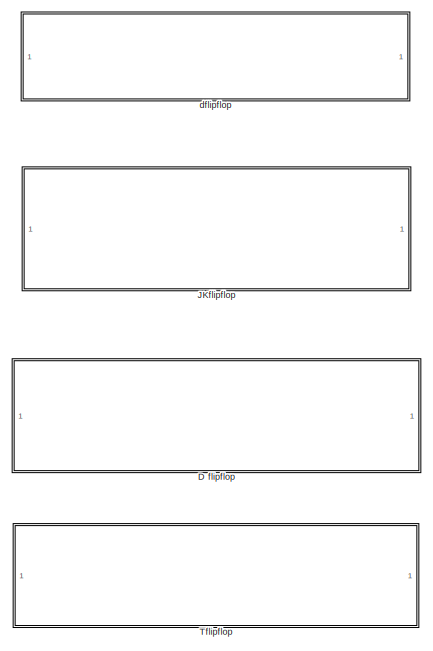
[diagram: root canvas - part 1/2, top center region]
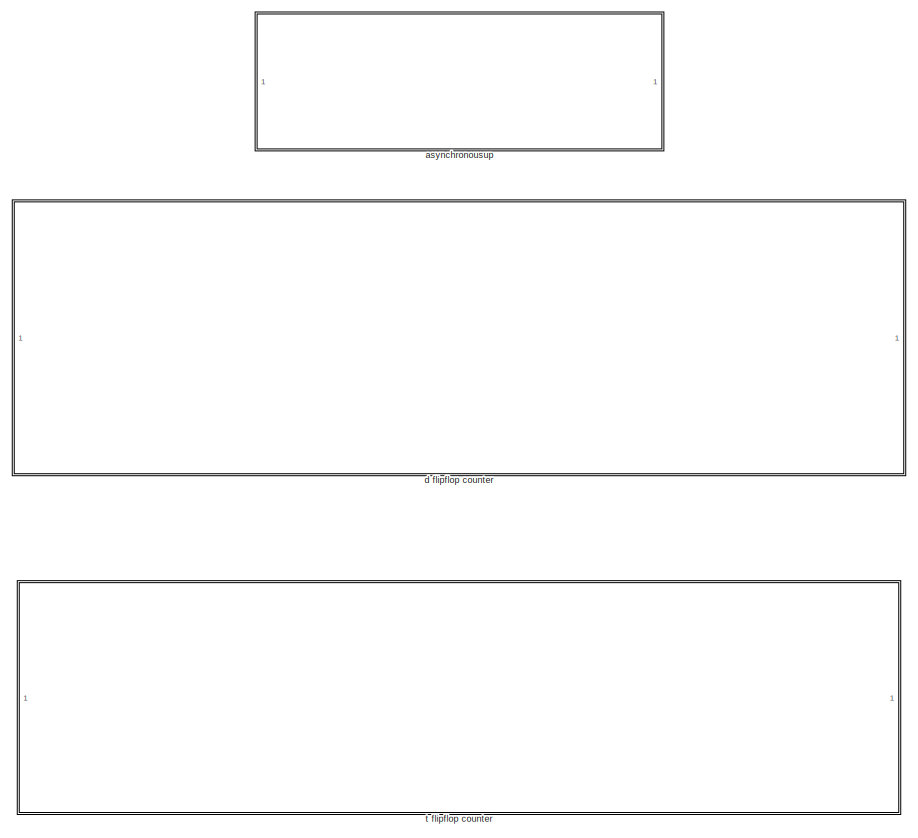
[diagram: root canvas - part 2/2, full width, bottom band]
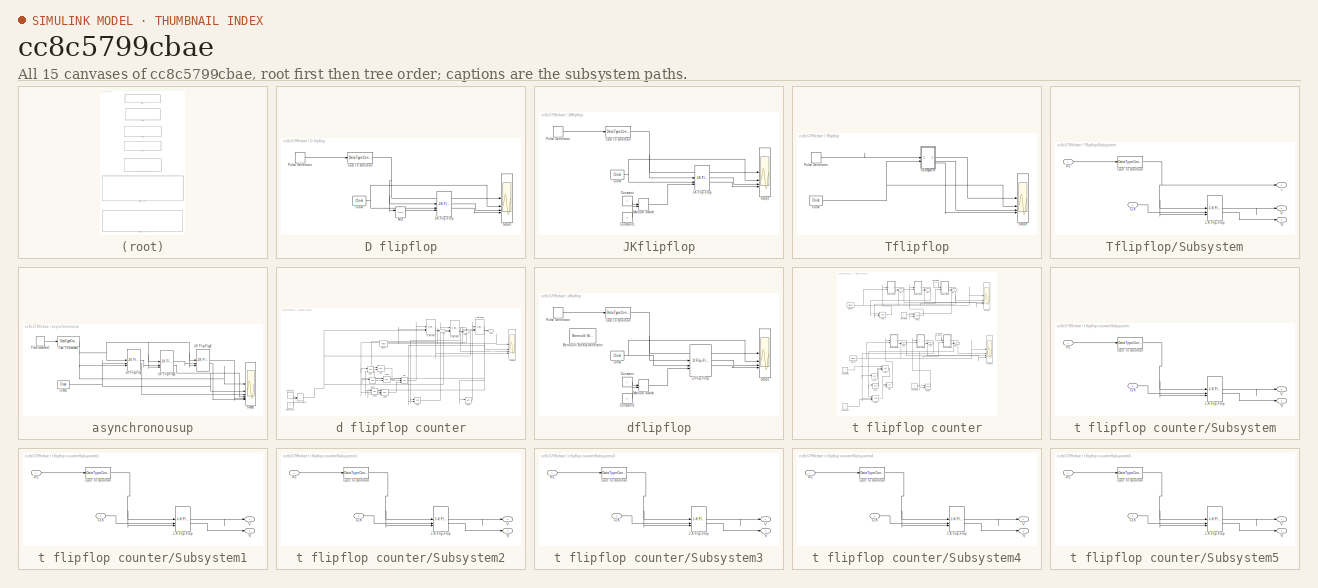
[diagram: thumbnail index - all 15 canvases of the model, root first then tree order]
MODEL slx_cc8c5799cbae
KIND model
CONFIG AbsTol = auto
CONFIG EnableMultiTasking = off
CONFIG FixedStep = auto
CONFIG MaxStep = auto
CONFIG MinStep = auto
CONFIG RelTol = 1e-3
CONFIG SampleTimeConstraint = Unconstrained
CONFIG SolverName = VariableStepAuto
CONFIG StartTime = 0.0
CONFIG StopTime = 10.0
BLOCK [SubSystem] D flipflop
BLOCK [DataTypeConversion] D flipflop/Cast To Boolean
  OutDataTypeStr = boolean
  RndMeth = Floor
  SaturateOnIntegerOverflow = off
BLOCK [Reference] D flipflop/Clock  REF=simulink_extras/Flip Flops/Clock
  SourceBlock = simulink_extras/Flip Flops/Clock
  SourceType = Digital clock
BLOCK [Reference] D flipflop/J-K Flip-Flop  REF=simulink_extras/Flip Flops/J-K
Flip-Flop
  SourceBlock = simulink_extras/Flip Flops/J-K\nFlip-Flop
  SourceType = JKFlipFlop
BLOCK [Logic] D flipflop/NOT
  AllPortsSameDT = off
  IconShape = distinctive
  Operator = NOT
  OutDataTypeStr = boolean
BLOCK [DiscretePulseGenerator] D flipflop/Pulse Generator
  PulseType = Time based
  PulseWidth = 50
BLOCK [Scope] D flipflop/Scope
  Floating = off
  NumInputPorts = 4
  ScopeSpecificationString = Simulink.scopes.TimeScopeBlockCfg('CurrentConfiguration', extmgr.ConfigurationSet(extmgr.Configuration('Core','General UI',true),extmgr.Configuration('Core','Source UI',true),extmgr.Configuration('Sources','WiredSimulink',true,'DataLoggingVariableName','ScopeData2'),extmgr.Configuration('Visuals','Time Domain',true,'SerializedDisplays',{struct('MinYLimReal','-0.125','MaxYLimReal','1.125','YLabelRe...<+3813ch>
BLOCK [SubSystem] JKflipflop
BLOCK [DataTypeConversion] JKflipflop/Cast To Boolean
  OutDataTypeStr = boolean
  RndMeth = Floor
  SaturateOnIntegerOverflow = off
BLOCK [Reference] JKflipflop/Clock  REF=simulink_extras/Flip Flops/Clock
  SourceBlock = simulink_extras/Flip Flops/Clock
  SourceType = Digital clock
BLOCK [Constant] JKflipflop/Constant
  OutDataTypeStr = boolean
BLOCK [Constant] JKflipflop/Constant1
  OutDataTypeStr = boolean
  Value = 0
BLOCK [Reference] JKflipflop/J-K Flip-Flop  REF=simulink_extras/Flip Flops/J-K
Flip-Flop
  SourceBlock = simulink_extras/Flip Flops/J-K\nFlip-Flop
  SourceType = JKFlipFlop
BLOCK [ManualSwitch] JKflipflop/Manual Switch
BLOCK [DiscretePulseGenerator] JKflipflop/Pulse Generator
  PulseType = Time based
  PulseWidth = 50
BLOCK [Scope] JKflipflop/Scope
  Floating = off
  NumInputPorts = 4
  ScopeSpecificationString = Simulink.scopes.TimeScopeBlockCfg('CurrentConfiguration', extmgr.ConfigurationSet(extmgr.Configuration('Core','General UI',true),extmgr.Configuration('Core','Source UI',true),extmgr.Configuration('Sources','WiredSimulink',true,'DataLoggingVariableName','ScopeData1'),extmgr.Configuration('Visuals','Time Domain',true,'SerializedDisplays',{struct('MinYLimReal','-0.125','MaxYLimReal','1.125','YLabelRe...<+3813ch>
BLOCK [SubSystem] Tflipflop
BLOCK [Reference] Tflipflop/Clock  REF=simulink_extras/Flip Flops/Clock
  SourceBlock = simulink_extras/Flip Flops/Clock
  SourceType = Digital clock
BLOCK [DiscretePulseGenerator] Tflipflop/Pulse Generator
  PulseType = Time based
  PulseWidth = 50
BLOCK [Scope] Tflipflop/Scope
  Floating = off
  NumInputPorts = 4
  ScopeSpecificationString = Simulink.scopes.TimeScopeBlockCfg('CurrentConfiguration', extmgr.ConfigurationSet(extmgr.Configuration('Core','General UI',true),extmgr.Configuration('Core','Source UI',true),extmgr.Configuration('Sources','WiredSimulink',true,'DataLoggingVariableName','ScopeData3'),extmgr.Configuration('Visuals','Time Domain',true,'SerializedDisplays',{struct('MinYLimReal','-0.125','MaxYLimReal','1.125','YLabelRe...<+3813ch>
BLOCK [SubSystem] Tflipflop/Subsystem
BLOCK [Outport] Tflipflop/Subsystem/!Q
  Port = 3
BLOCK [Inport] Tflipflop/Subsystem/CLK
  Port = 2
BLOCK [DataTypeConversion] Tflipflop/Subsystem/Cast To Boolean
  OutDataTypeStr = boolean
  RndMeth = Floor
  SaturateOnIntegerOverflow = off
BLOCK [Inport] Tflipflop/Subsystem/In1
BLOCK [Outport] Tflipflop/Subsystem/J
BLOCK [Reference] Tflipflop/Subsystem/J-K Flip-Flop  REF=simulink_extras/Flip Flops/J-K
Flip-Flop
  SourceBlock = simulink_extras/Flip Flops/J-K\nFlip-Flop
  SourceType = JKFlipFlop
BLOCK [Outport] Tflipflop/Subsystem/Q
  Port = 2
BLOCK [SubSystem] asynchronousup
BLOCK [DataTypeConversion] asynchronousup/Cast To Boolean1
  OutDataTypeStr = boolean
  RndMeth = Floor
  SaturateOnIntegerOverflow = off
BLOCK [Reference] asynchronousup/Clock1  REF=simulink_extras/Flip Flops/Clock
  SourceBlock = simulink_extras/Flip Flops/Clock
  SourceType = Digital clock
BLOCK [Reference] asynchronousup/J-K Flip-Flop  REF=simulink_extras/Flip Flops/J-K
Flip-Flop
  SourceBlock = simulink_extras/Flip Flops/J-K\nFlip-Flop
  SourceType = JKFlipFlop
BLOCK [Reference] asynchronousup/J-K Flip-Flop1  REF=simulink_extras/Flip Flops/J-K
Flip-Flop
  SourceBlock = simulink_extras/Flip Flops/J-K\nFlip-Flop
  SourceType = JKFlipFlop
BLOCK [Reference] asynchronousup/J-K Flip-Flop2  REF=simulink_extras/Flip Flops/J-K
Flip-Flop
  SourceBlock = simulink_extras/Flip Flops/J-K\nFlip-Flop
  SourceType = JKFlipFlop
BLOCK [DiscretePulseGenerator] asynchronousup/Pulse Generator1
  PulseType = Time based
  PulseWidth = 50
BLOCK [Scope] asynchronousup/Scope1
  Floating = off
  NumInputPorts = 6
  ScopeSpecificationString = Simulink.scopes.TimeScopeBlockCfg('CurrentConfiguration', extmgr.ConfigurationSet(extmgr.Configuration('Core','General UI',true),extmgr.Configuration('Core','Source UI',true),extmgr.Configuration('Sources','WiredSimulink',true,'DataLoggingVariableName','ScopeData5'),extmgr.Configuration('Visuals','Time Domain',true,'SerializedDisplays',{struct('MinYLimReal','-0.125','MaxYLimReal','1.125','YLabelRe...<+5408ch>
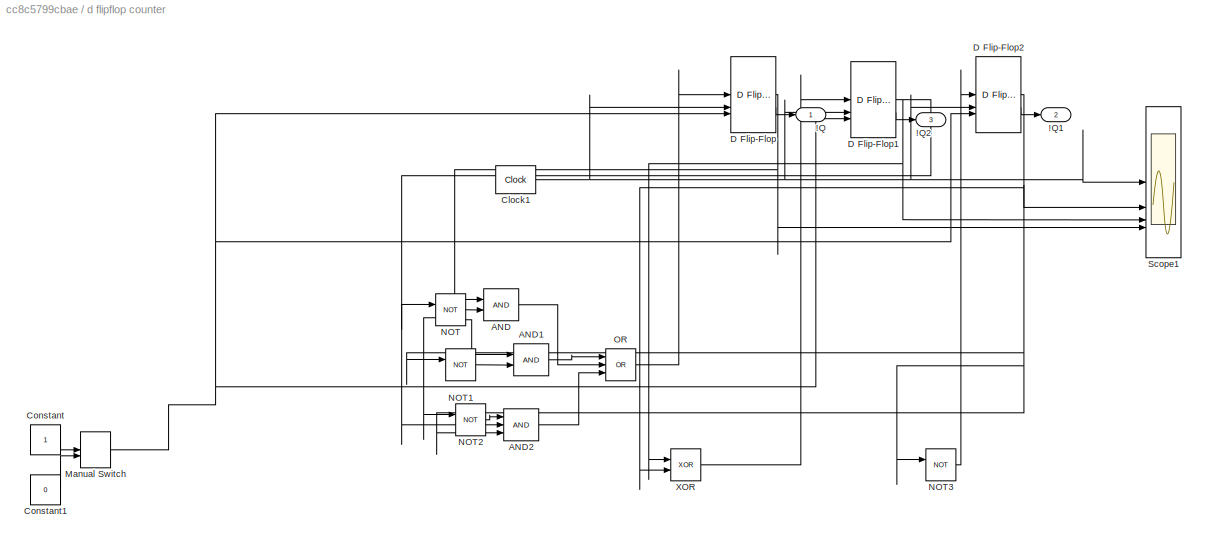
BLOCK [SubSystem] d flipflop counter
BLOCK [Outport] d flipflop counter/!Q
BLOCK [Outport] d flipflop counter/!Q1
  Port = 2
BLOCK [Outport] d flipflop counter/!Q2
  Port = 3
BLOCK [Logic] d flipflop counter/AND
  AllPortsSameDT = off
  IconShape = distinctive
  OutDataTypeStr = boolean
BLOCK [Logic] d flipflop counter/AND1
  AllPortsSameDT = off
  IconShape = distinctive
  OutDataTypeStr = boolean
BLOCK [Logic] d flipflop counter/AND2
  AllPortsSameDT = off
  IconShape = distinctive
  Inputs = 3
  OutDataTypeStr = boolean
BLOCK [Reference] d flipflop counter/Clock1  REF=simulink_extras/Flip Flops/Clock
  SourceBlock = simulink_extras/Flip Flops/Clock
  SourceType = Digital clock
BLOCK [Constant] d flipflop counter/Constant
  OutDataTypeStr = boolean
BLOCK [Constant] d flipflop counter/Constant1
  OutDataTypeStr = boolean
  Value = 0
BLOCK [Reference] d flipflop counter/D Flip-Flop  REF=simulink_extras/Flip Flops/D Flip-Flop
  SourceBlock = simulink_extras/Flip Flops/D Flip-Flop
  SourceType = DFlipFlop
BLOCK [Reference] d flipflop counter/D Flip-Flop1  REF=simulink_extras/Flip Flops/D Flip-Flop
  SourceBlock = simulink_extras/Flip Flops/D Flip-Flop
  SourceType = DFlipFlop
BLOCK [Reference] d flipflop counter/D Flip-Flop2  REF=simulink_extras/Flip Flops/D Flip-Flop
  SourceBlock = simulink_extras/Flip Flops/D Flip-Flop
  SourceType = DFlipFlop
BLOCK [ManualSwitch] d flipflop counter/Manual Switch
BLOCK [Logic] d flipflop counter/NOT
  AllPortsSameDT = off
  IconShape = distinctive
  Operator = NOT
  OutDataTypeStr = boolean
BLOCK [Logic] d flipflop counter/NOT1
  AllPortsSameDT = off
  IconShape = distinctive
  Operator = NOT
  OutDataTypeStr = boolean
BLOCK [Logic] d flipflop counter/NOT2
  AllPortsSameDT = off
  IconShape = distinctive
  Operator = NOT
  OutDataTypeStr = boolean
BLOCK [Logic] d flipflop counter/NOT3
  AllPortsSameDT = off
  IconShape = distinctive
  Operator = NOT
  OutDataTypeStr = boolean
BLOCK [Logic] d flipflop counter/OR
  AllPortsSameDT = off
  IconShape = distinctive
  Inputs = 3
  Operator = OR
  OutDataTypeStr = boolean
BLOCK [Scope] d flipflop counter/Scope1
  Floating = off
  NumInputPorts = 4
  ScopeSpecificationString = Simulink.scopes.TimeScopeBlockCfg('CurrentConfiguration', extmgr.ConfigurationSet(extmgr.Configuration('Core','General UI',true),extmgr.Configuration('Core','Source UI',true),extmgr.Configuration('Sources','WiredSimulink',true,'DataLoggingVariableName','ScopeData1'),extmgr.Configuration('Visuals','Time Domain',true,'SerializedDisplays',{struct('MinYLimReal','-0.125','MaxYLimReal','1.125','YLabelRe...<+3804ch>
BLOCK [Logic] d flipflop counter/XOR
  AllPortsSameDT = off
  IconShape = distinctive
  Operator = XOR
  OutDataTypeStr = boolean
BLOCK [SubSystem] dflipflop
BLOCK [Reference] dflipflop/Bernoulli Binary Generator  REF=commrandsrc3/Bernoulli Binary
Generator
  SourceBlock = commrandsrc3/Bernoulli Binary\nGenerator
  SourceType = Bernoulli Binary Generator
BLOCK [DataTypeConversion] dflipflop/Cast To Boolean
  OutDataTypeStr = boolean
  RndMeth = Floor
  SaturateOnIntegerOverflow = off
BLOCK [Reference] dflipflop/Clock  REF=simulink_extras/Flip Flops/Clock
  SourceBlock = simulink_extras/Flip Flops/Clock
  SourceType = Digital clock
BLOCK [Constant] dflipflop/Constant
  OutDataTypeStr = boolean
BLOCK [Constant] dflipflop/Constant1
  OutDataTypeStr = boolean
  Value = 0
BLOCK [Reference] dflipflop/D Flip-Flop  REF=simulink_extras/Flip Flops/D Flip-Flop
  SourceBlock = simulink_extras/Flip Flops/D Flip-Flop
  SourceType = DFlipFlop
BLOCK [ManualSwitch] dflipflop/Manual Switch
BLOCK [DiscretePulseGenerator] dflipflop/Pulse Generator
  PulseType = Time based
  PulseWidth = 50
BLOCK [Scope] dflipflop/Scope
  Floating = off
  NumInputPorts = 4
  ScopeSpecificationString = Simulink.scopes.TimeScopeBlockCfg('CurrentConfiguration', extmgr.ConfigurationSet(extmgr.Configuration('Core','General UI',true),extmgr.Configuration('Core','Source UI',true),extmgr.Configuration('Sources','WiredSimulink',true),extmgr.Configuration('Visuals','Time Domain',true,'SerializedDisplays',{struct('MinYLimReal','-0.125','MaxYLimReal','1.125','YLabelReal','','MinYLimMag','0.00000','MaxYLimM...<+3764ch>
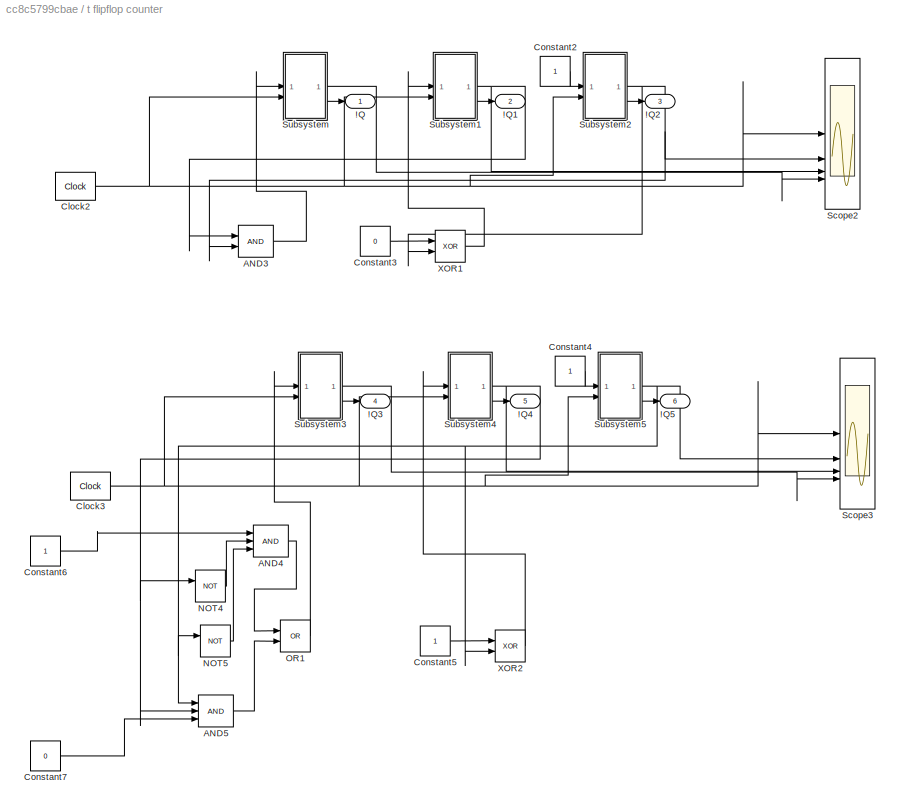
BLOCK [SubSystem] t flipflop counter
BLOCK [Outport] t flipflop counter/!Q
BLOCK [Outport] t flipflop counter/!Q1
  Port = 2
BLOCK [Outport] t flipflop counter/!Q2
  Port = 3
BLOCK [Outport] t flipflop counter/!Q3
  Port = 4
BLOCK [Outport] t flipflop counter/!Q4
  Port = 5
BLOCK [Outport] t flipflop counter/!Q5
  Port = 6
BLOCK [Logic] t flipflop counter/AND3
  AllPortsSameDT = off
  IconShape = distinctive
  OutDataTypeStr = boolean
BLOCK [Logic] t flipflop counter/AND4
  AllPortsSameDT = off
  IconShape = distinctive
  Inputs = 3
  OutDataTypeStr = boolean
BLOCK [Logic] t flipflop counter/AND5
  AllPortsSameDT = off
  IconShape = distinctive
  Inputs = 3
  OutDataTypeStr = boolean
BLOCK [Reference] t flipflop counter/Clock2  REF=simulink_extras/Flip Flops/Clock
  SourceBlock = simulink_extras/Flip Flops/Clock
  SourceType = Digital clock
BLOCK [Reference] t flipflop counter/Clock3  REF=simulink_extras/Flip Flops/Clock
  SourceBlock = simulink_extras/Flip Flops/Clock
  SourceType = Digital clock
BLOCK [Constant] t flipflop counter/Constant2
BLOCK [Constant] t flipflop counter/Constant3
  Value = 0
BLOCK [Constant] t flipflop counter/Constant4
BLOCK [Constant] t flipflop counter/Constant5
BLOCK [Constant] t flipflop counter/Constant6
BLOCK [Constant] t flipflop counter/Constant7
  Value = 0
BLOCK [Logic] t flipflop counter/NOT4
  AllPortsSameDT = off
  IconShape = distinctive
  Operator = NOT
  OutDataTypeStr = boolean
BLOCK [Logic] t flipflop counter/NOT5
  AllPortsSameDT = off
  IconShape = distinctive
  Operator = NOT
  OutDataTypeStr = boolean
BLOCK [Logic] t flipflop counter/OR1
  AllPortsSameDT = off
  IconShape = distinctive
  Operator = OR
  OutDataTypeStr = boolean
BLOCK [Scope] t flipflop counter/Scope2
  Floating = off
  NumInputPorts = 4
  ScopeSpecificationString = Simulink.scopes.TimeScopeBlockCfg('CurrentConfiguration', extmgr.ConfigurationSet(extmgr.Configuration('Core','General UI',true),extmgr.Configuration('Core','Source UI',true),extmgr.Configuration('Sources','WiredSimulink',true,'DataLoggingVariableName','ScopeData2'),extmgr.Configuration('Visuals','Time Domain',true,'SerializedDisplays',{struct('MinYLimReal','-0.125','MaxYLimReal','1.125','YLabelRe...<+3798ch>
BLOCK [Scope] t flipflop counter/Scope3
  Floating = off
  NumInputPorts = 4
  ScopeSpecificationString = Simulink.scopes.TimeScopeBlockCfg('CurrentConfiguration', extmgr.ConfigurationSet(extmgr.Configuration('Core','General UI',true),extmgr.Configuration('Core','Source UI',true),extmgr.Configuration('Sources','WiredSimulink',true,'DataLoggingVariableName','ScopeData3'),extmgr.Configuration('Visuals','Time Domain',true,'SerializedDisplays',{struct('MinYLimReal','-0.125','MaxYLimReal','1.125','YLabelRe...<+3799ch>
BLOCK [SubSystem] t flipflop counter/Subsystem
BLOCK [Outport] t flipflop counter/Subsystem/!Q
  Port = 2
BLOCK [Inport] t flipflop counter/Subsystem/CLK
  Port = 2
BLOCK [DataTypeConversion] t flipflop counter/Subsystem/Cast To Boolean
  OutDataTypeStr = boolean
  RndMeth = Floor
  SaturateOnIntegerOverflow = off
BLOCK [Inport] t flipflop counter/Subsystem/In1
BLOCK [Reference] t flipflop counter/Subsystem/J-K Flip-Flop  REF=simulink_extras/Flip Flops/J-K
Flip-Flop
  SourceBlock = simulink_extras/Flip Flops/J-K\nFlip-Flop
  SourceType = JKFlipFlop
BLOCK [Outport] t flipflop counter/Subsystem/Q
BLOCK [SubSystem] t flipflop counter/Subsystem1
BLOCK [Outport] t flipflop counter/Subsystem1/!Q
  Port = 2
BLOCK [Inport] t flipflop counter/Subsystem1/CLK
  Port = 2
BLOCK [DataTypeConversion] t flipflop counter/Subsystem1/Cast To Boolean
  OutDataTypeStr = boolean
  RndMeth = Floor
  SaturateOnIntegerOverflow = off
BLOCK [Inport] t flipflop counter/Subsystem1/In1
BLOCK [Reference] t flipflop counter/Subsystem1/J-K Flip-Flop  REF=simulink_extras/Flip Flops/J-K
Flip-Flop
  SourceBlock = simulink_extras/Flip Flops/J-K\nFlip-Flop
  SourceType = JKFlipFlop
BLOCK [Outport] t flipflop counter/Subsystem1/Q
BLOCK [SubSystem] t flipflop counter/Subsystem2
BLOCK [Outport] t flipflop counter/Subsystem2/!Q
  Port = 2
BLOCK [Inport] t flipflop counter/Subsystem2/CLK
  Port = 2
BLOCK [DataTypeConversion] t flipflop counter/Subsystem2/Cast To Boolean
  OutDataTypeStr = boolean
  RndMeth = Floor
  SaturateOnIntegerOverflow = off
BLOCK [Inport] t flipflop counter/Subsystem2/In1
BLOCK [Reference] t flipflop counter/Subsystem2/J-K Flip-Flop  REF=simulink_extras/Flip Flops/J-K
Flip-Flop
  SourceBlock = simulink_extras/Flip Flops/J-K\nFlip-Flop
  SourceType = JKFlipFlop
BLOCK [Outport] t flipflop counter/Subsystem2/Q
BLOCK [SubSystem] t flipflop counter/Subsystem3
BLOCK [Outport] t flipflop counter/Subsystem3/!Q
  Port = 2
BLOCK [Inport] t flipflop counter/Subsystem3/CLK
  Port = 2
BLOCK [DataTypeConversion] t flipflop counter/Subsystem3/Cast To Boolean
  OutDataTypeStr = boolean
  RndMeth = Floor
  SaturateOnIntegerOverflow = off
BLOCK [Inport] t flipflop counter/Subsystem3/In1
BLOCK [Reference] t flipflop counter/Subsystem3/J-K Flip-Flop  REF=simulink_extras/Flip Flops/J-K
Flip-Flop
  SourceBlock = simulink_extras/Flip Flops/J-K\nFlip-Flop
  SourceType = JKFlipFlop
BLOCK [Outport] t flipflop counter/Subsystem3/Q
BLOCK [SubSystem] t flipflop counter/Subsystem4
BLOCK [Outport] t flipflop counter/Subsystem4/!Q
  Port = 2
BLOCK [Inport] t flipflop counter/Subsystem4/CLK
  Port = 2
BLOCK [DataTypeConversion] t flipflop counter/Subsystem4/Cast To Boolean
  OutDataTypeStr = boolean
  RndMeth = Floor
  SaturateOnIntegerOverflow = off
BLOCK [Inport] t flipflop counter/Subsystem4/In1
BLOCK [Reference] t flipflop counter/Subsystem4/J-K Flip-Flop  REF=simulink_extras/Flip Flops/J-K
Flip-Flop
  SourceBlock = simulink_extras/Flip Flops/J-K\nFlip-Flop
  SourceType = JKFlipFlop
BLOCK [Outport] t flipflop counter/Subsystem4/Q
BLOCK [SubSystem] t flipflop counter/Subsystem5
BLOCK [Outport] t flipflop counter/Subsystem5/!Q
  Port = 2
BLOCK [Inport] t flipflop counter/Subsystem5/CLK
  Port = 2
BLOCK [DataTypeConversion] t flipflop counter/Subsystem5/Cast To Boolean
  OutDataTypeStr = boolean
  RndMeth = Floor
  SaturateOnIntegerOverflow = off
BLOCK [Inport] t flipflop counter/Subsystem5/In1
BLOCK [Reference] t flipflop counter/Subsystem5/J-K Flip-Flop  REF=simulink_extras/Flip Flops/J-K
Flip-Flop
  SourceBlock = simulink_extras/Flip Flops/J-K\nFlip-Flop
  SourceType = JKFlipFlop
BLOCK [Outport] t flipflop counter/Subsystem5/Q
BLOCK [Logic] t flipflop counter/XOR1
  AllPortsSameDT = off
  IconShape = distinctive
  Operator = XOR
  OutDataTypeStr = boolean
BLOCK [Logic] t flipflop counter/XOR2
  AllPortsSameDT = off
  IconShape = distinctive
  Operator = XOR
  OutDataTypeStr = boolean
NET D flipflop/Cast To Boolean:1 -> D flipflop/J-K Flip-Flop:1, D flipflop/NOT:1, D flipflop/Scope:1
NET D flipflop/Clock:1 -> D flipflop/J-K Flip-Flop:2, D flipflop/Scope:2
LINE D flipflop/J-K Flip-Flop:1 -> D flipflop/Scope:3
LINE D flipflop/J-K Flip-Flop:2 -> D flipflop/Scope:4
LINE D flipflop/NOT:1 -> D flipflop/J-K Flip-Flop:3
LINE D flipflop/Pulse Generator:1 -> D flipflop/Cast To Boolean:1
NET JKflipflop/Cast To Boolean:1 -> JKflipflop/J-K Flip-Flop:1, JKflipflop/Scope:1
NET JKflipflop/Clock:1 -> JKflipflop/J-K Flip-Flop:2, JKflipflop/Scope:2
LINE JKflipflop/Constant1:1 -> JKflipflop/Manual Switch:2
LINE JKflipflop/Constant:1 -> JKflipflop/Manual Switch:1
LINE JKflipflop/J-K Flip-Flop:1 -> JKflipflop/Scope:3
LINE JKflipflop/J-K Flip-Flop:2 -> JKflipflop/Scope:4
LINE JKflipflop/Manual Switch:1 -> JKflipflop/J-K Flip-Flop:3
LINE JKflipflop/Pulse Generator:1 -> JKflipflop/Cast To Boolean:1
NET Tflipflop/Clock:1 -> Tflipflop/Scope:2, Tflipflop/Subsystem:2
LINE Tflipflop/Pulse Generator:1 -> Tflipflop/Subsystem:1
LINE Tflipflop/Subsystem/CLK:1 -> Tflipflop/Subsystem/J-K Flip-Flop:2
NET Tflipflop/Subsystem/Cast To Boolean:1 -> Tflipflop/Subsystem/J-K Flip-Flop:1, Tflipflop/Subsystem/J-K Flip-Flop:3, Tflipflop/Subsystem/J:1
LINE Tflipflop/Subsystem/In1:1 -> Tflipflop/Subsystem/Cast To Boolean:1
LINE Tflipflop/Subsystem/J-K Flip-Flop:1 -> Tflipflop/Subsystem/Q:1
LINE Tflipflop/Subsystem/J-K Flip-Flop:2 -> Tflipflop/Subsystem/!Q:1
LINE Tflipflop/Subsystem:1 -> Tflipflop/Scope:1
LINE Tflipflop/Subsystem:2 -> Tflipflop/Scope:3
LINE Tflipflop/Subsystem:3 -> Tflipflop/Scope:4
NET asynchronousup/Cast To Boolean1:1 -> asynchronousup/J-K Flip-Flop1:1, asynchronousup/J-K Flip-Flop1:3, asynchronousup/J-K Flip-Flop2:1, asynchronousup/J-K Flip-Flop2:3, asynchronousup/J-K Flip-Flop:1, asynchronousup/J-K Flip-Flop:3, asynchronousup/Scope1:1
NET asynchronousup/Clock1:1 -> asynchronousup/J-K Flip-Flop:2, asynchronousup/Scope1:2
LINE asynchronousup/J-K Flip-Flop1:1 -> asynchronousup/J-K Flip-Flop2:2
LINE asynchronousup/J-K Flip-Flop1:2 -> asynchronousup/Scope1:4
LINE asynchronousup/J-K Flip-Flop2:1 -> asynchronousup/Scope1:5
LINE asynchronousup/J-K Flip-Flop2:2 -> asynchronousup/Scope1:6
LINE asynchronousup/J-K Flip-Flop:1 -> asynchronousup/J-K Flip-Flop1:2
LINE asynchronousup/J-K Flip-Flop:2 -> asynchronousup/Scope1:3
LINE asynchronousup/Pulse Generator1:1 -> asynchronousup/Cast To Boolean1:1
LINE d flipflop counter/AND1:1 -> d flipflop counter/OR:1
LINE d flipflop counter/AND2:1 -> d flipflop counter/OR:3
LINE d flipflop counter/AND:1 -> d flipflop counter/OR:2
NET d flipflop counter/Clock1:1 -> d flipflop counter/D Flip-Flop1:2, d flipflop counter/D Flip-Flop2:2, d flipflop counter/D Flip-Flop:2, d flipflop counter/Scope1:1
LINE d flipflop counter/Constant1:1 -> d flipflop counter/Manual Switch:2
LINE d flipflop counter/Constant:1 -> d flipflop counter/Manual Switch:1
NET d flipflop counter/D Flip-Flop1:1 -> d flipflop counter/AND2:2, d flipflop counter/NOT:1, d flipflop counter/Scope1:3, d flipflop counter/XOR:1
LINE d flipflop counter/D Flip-Flop1:2 -> d flipflop counter/!Q2:1
NET d flipflop counter/D Flip-Flop2:1 -> d flipflop counter/AND2:3, d flipflop counter/NOT1:1, d flipflop counter/NOT3:1, d flipflop counter/Scope1:2, d flipflop counter/XOR:2
LINE d flipflop counter/D Flip-Flop2:2 -> d flipflop counter/!Q1:1
NET d flipflop counter/D Flip-Flop:1 -> d flipflop counter/AND1:1, d flipflop counter/AND:1, d flipflop counter/NOT2:1, d flipflop counter/Scope1:4
LINE d flipflop counter/D Flip-Flop:2 -> d flipflop counter/!Q:1
NET d flipflop counter/Manual Switch:1 -> d flipflop counter/D Flip-Flop1:3, d flipflop counter/D Flip-Flop2:3, d flipflop counter/D Flip-Flop:3
LINE d flipflop counter/NOT1:1 -> d flipflop counter/AND1:2
LINE d flipflop counter/NOT2:1 -> d flipflop counter/AND2:1
LINE d flipflop counter/NOT3:1 -> d flipflop counter/D Flip-Flop2:1
LINE d flipflop counter/NOT:1 -> d flipflop counter/AND:2
LINE d flipflop counter/OR:1 -> d flipflop counter/D Flip-Flop:1
LINE d flipflop counter/XOR:1 -> d flipflop counter/D Flip-Flop1:1
NET dflipflop/Cast To Boolean:1 -> dflipflop/D Flip-Flop:1, dflipflop/Scope:1
NET dflipflop/Clock:1 -> dflipflop/D Flip-Flop:2, dflipflop/Scope:2
LINE dflipflop/Constant1:1 -> dflipflop/Manual Switch:2
LINE dflipflop/Constant:1 -> dflipflop/Manual Switch:1
LINE dflipflop/D Flip-Flop:1 -> dflipflop/Scope:3
LINE dflipflop/D Flip-Flop:2 -> dflipflop/Scope:4
LINE dflipflop/Manual Switch:1 -> dflipflop/D Flip-Flop:3
LINE dflipflop/Pulse Generator:1 -> dflipflop/Cast To Boolean:1
LINE t flipflop counter/AND3:1 -> t flipflop counter/Subsystem:1
LINE t flipflop counter/AND4:1 -> t flipflop counter/OR1:1
LINE t flipflop counter/AND5:1 -> t flipflop counter/OR1:2
NET t flipflop counter/Clock2:1 -> t flipflop counter/Scope2:1, t flipflop counter/Subsystem1:2, t flipflop counter/Subsystem2:2, t flipflop counter/Subsystem:2
NET t flipflop counter/Clock3:1 -> t flipflop counter/Scope3:1, t flipflop counter/Subsystem3:2, t flipflop counter/Subsystem4:2, t flipflop counter/Subsystem5:2
LINE t flipflop counter/Constant2:1 -> t flipflop counter/Subsystem2:1
LINE t flipflop counter/Constant3:1 -> t flipflop counter/XOR1:1
LINE t flipflop counter/Constant4:1 -> t flipflop counter/Subsystem5:1
LINE t flipflop counter/Constant5:1 -> t flipflop counter/XOR2:1
LINE t flipflop counter/Constant6:1 -> t flipflop counter/AND4:1
LINE t flipflop counter/Constant7:1 -> t flipflop counter/AND5:3
LINE t flipflop counter/NOT4:1 -> t flipflop counter/AND4:2
LINE t flipflop counter/NOT5:1 -> t flipflop counter/AND4:3
LINE t flipflop counter/OR1:1 -> t flipflop counter/Subsystem3:1
LINE t flipflop counter/Subsystem/CLK:1 -> t flipflop counter/Subsystem/J-K Flip-Flop:2
NET t flipflop counter/Subsystem/Cast To Boolean:1 -> t flipflop counter/Subsystem/J-K Flip-Flop:1, t flipflop counter/Subsystem/J-K Flip-Flop:3
LINE t flipflop counter/Subsystem/In1:1 -> t flipflop counter/Subsystem/Cast To Boolean:1
LINE t flipflop counter/Subsystem/J-K Flip-Flop:1 -> t flipflop counter/Subsystem/Q:1
LINE t flipflop counter/Subsystem/J-K Flip-Flop:2 -> t flipflop counter/Subsystem/!Q:1
LINE t flipflop counter/Subsystem1/CLK:1 -> t flipflop counter/Subsystem1/J-K Flip-Flop:2
NET t flipflop counter/Subsystem1/Cast To Boolean:1 -> t flipflop counter/Subsystem1/J-K Flip-Flop:1, t flipflop counter/Subsystem1/J-K Flip-Flop:3
LINE t flipflop counter/Subsystem1/In1:1 -> t flipflop counter/Subsystem1/Cast To Boolean:1
LINE t flipflop counter/Subsystem1/J-K Flip-Flop:1 -> t flipflop counter/Subsystem1/Q:1
LINE t flipflop counter/Subsystem1/J-K Flip-Flop:2 -> t flipflop counter/Subsystem1/!Q:1
NET t flipflop counter/Subsystem1:1 -> t flipflop counter/AND3:1, t flipflop counter/Scope2:3
LINE t flipflop counter/Subsystem1:2 -> t flipflop counter/!Q1:1
LINE t flipflop counter/Subsystem2/CLK:1 -> t flipflop counter/Subsystem2/J-K Flip-Flop:2
NET t flipflop counter/Subsystem2/Cast To Boolean:1 -> t flipflop counter/Subsystem2/J-K Flip-Flop:1, t flipflop counter/Subsystem2/J-K Flip-Flop:3
LINE t flipflop counter/Subsystem2/In1:1 -> t flipflop counter/Subsystem2/Cast To Boolean:1
LINE t flipflop counter/Subsystem2/J-K Flip-Flop:1 -> t flipflop counter/Subsystem2/Q:1
LINE t flipflop counter/Subsystem2/J-K Flip-Flop:2 -> t flipflop counter/Subsystem2/!Q:1
NET t flipflop counter/Subsystem2:1 -> t flipflop counter/AND3:2, t flipflop counter/Scope2:2, t flipflop counter/XOR1:2
LINE t flipflop counter/Subsystem2:2 -> t flipflop counter/!Q2:1
LINE t flipflop counter/Subsystem3/CLK:1 -> t flipflop counter/Subsystem3/J-K Flip-Flop:2
NET t flipflop counter/Subsystem3/Cast To Boolean:1 -> t flipflop counter/Subsystem3/J-K Flip-Flop:1, t flipflop counter/Subsystem3/J-K Flip-Flop:3
LINE t flipflop counter/Subsystem3/In1:1 -> t flipflop counter/Subsystem3/Cast To Boolean:1
LINE t flipflop counter/Subsystem3/J-K Flip-Flop:1 -> t flipflop counter/Subsystem3/Q:1
LINE t flipflop counter/Subsystem3/J-K Flip-Flop:2 -> t flipflop counter/Subsystem3/!Q:1
LINE t flipflop counter/Subsystem3:1 -> t flipflop counter/Scope3:4
LINE t flipflop counter/Subsystem3:2 -> t flipflop counter/!Q3:1
LINE t flipflop counter/Subsystem4/CLK:1 -> t flipflop counter/Subsystem4/J-K Flip-Flop:2
NET t flipflop counter/Subsystem4/Cast To Boolean:1 -> t flipflop counter/Subsystem4/J-K Flip-Flop:1, t flipflop counter/Subsystem4/J-K Flip-Flop:3
LINE t flipflop counter/Subsystem4/In1:1 -> t flipflop counter/Subsystem4/Cast To Boolean:1
LINE t flipflop counter/Subsystem4/J-K Flip-Flop:1 -> t flipflop counter/Subsystem4/Q:1
LINE t flipflop counter/Subsystem4/J-K Flip-Flop:2 -> t flipflop counter/Subsystem4/!Q:1
NET t flipflop counter/Subsystem4:1 -> t flipflop counter/AND5:2, t flipflop counter/NOT4:1, t flipflop counter/Scope3:3
LINE t flipflop counter/Subsystem4:2 -> t flipflop counter/!Q4:1
LINE t flipflop counter/Subsystem5/CLK:1 -> t flipflop counter/Subsystem5/J-K Flip-Flop:2
NET t flipflop counter/Subsystem5/Cast To Boolean:1 -> t flipflop counter/Subsystem5/J-K Flip-Flop:1, t flipflop counter/Subsystem5/J-K Flip-Flop:3
LINE t flipflop counter/Subsystem5/In1:1 -> t flipflop counter/Subsystem5/Cast To Boolean:1
LINE t flipflop counter/Subsystem5/J-K Flip-Flop:1 -> t flipflop counter/Subsystem5/Q:1
LINE t flipflop counter/Subsystem5/J-K Flip-Flop:2 -> t flipflop counter/Subsystem5/!Q:1
NET t flipflop counter/Subsystem5:1 -> t flipflop counter/AND5:1, t flipflop counter/NOT5:1, t flipflop counter/Scope3:2, t flipflop counter/XOR2:2
LINE t flipflop counter/Subsystem5:2 -> t flipflop counter/!Q5:1
LINE t flipflop counter/Subsystem:1 -> t flipflop counter/Scope2:4
LINE t flipflop counter/Subsystem:2 -> t flipflop counter/!Q:1
LINE t flipflop counter/XOR1:1 -> t flipflop counter/Subsystem1:1
LINE t flipflop counter/XOR2:1 -> t flipflop counter/Subsystem4:1
note: NET lines group one-source signal fan-out (src -> all destinations, sorted); 1:1 wires keep LINE
